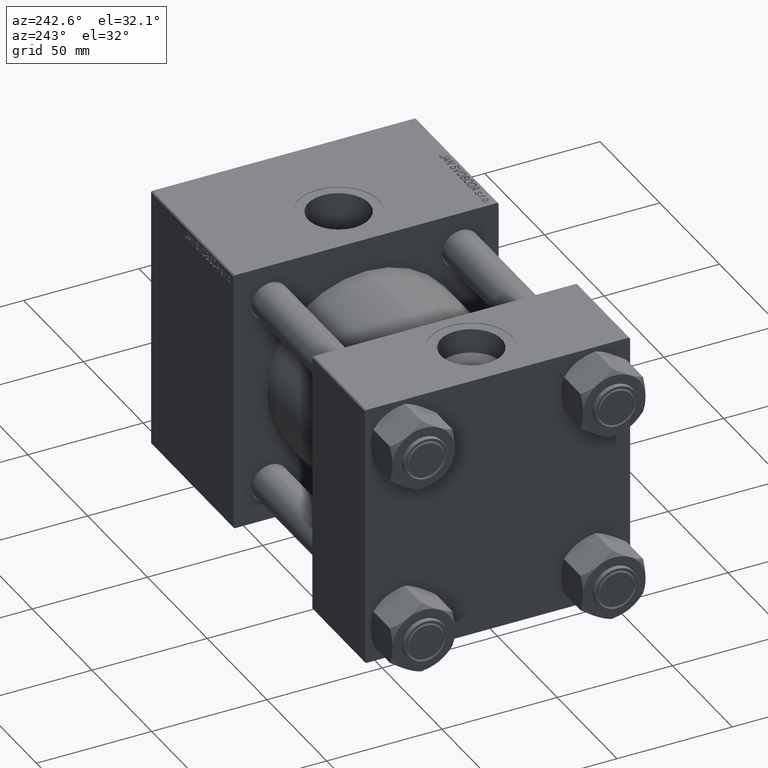
[diagram: clean part render]
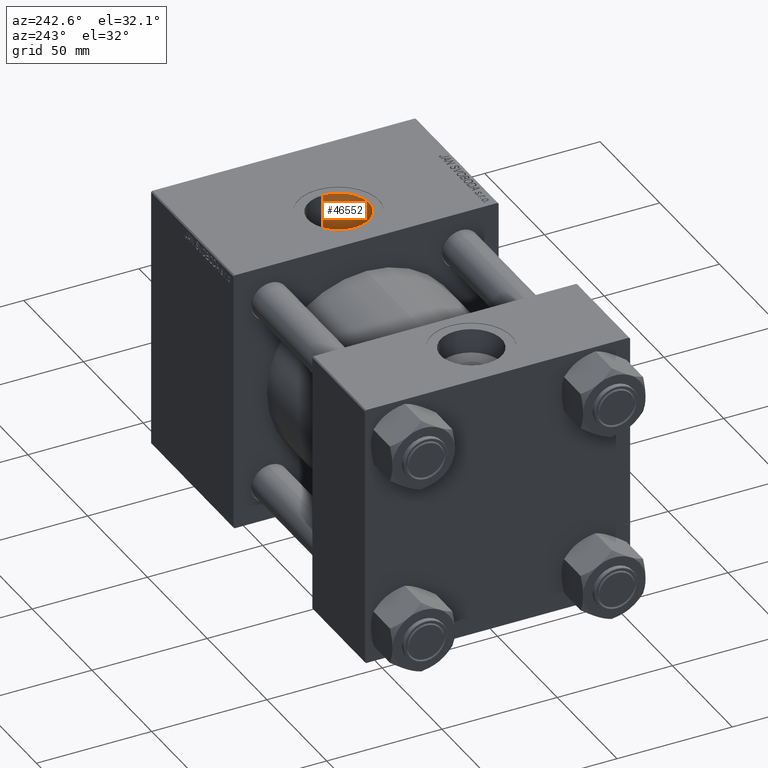
[diagram: same view with one face highlighted and labeled with its STEP entity id]
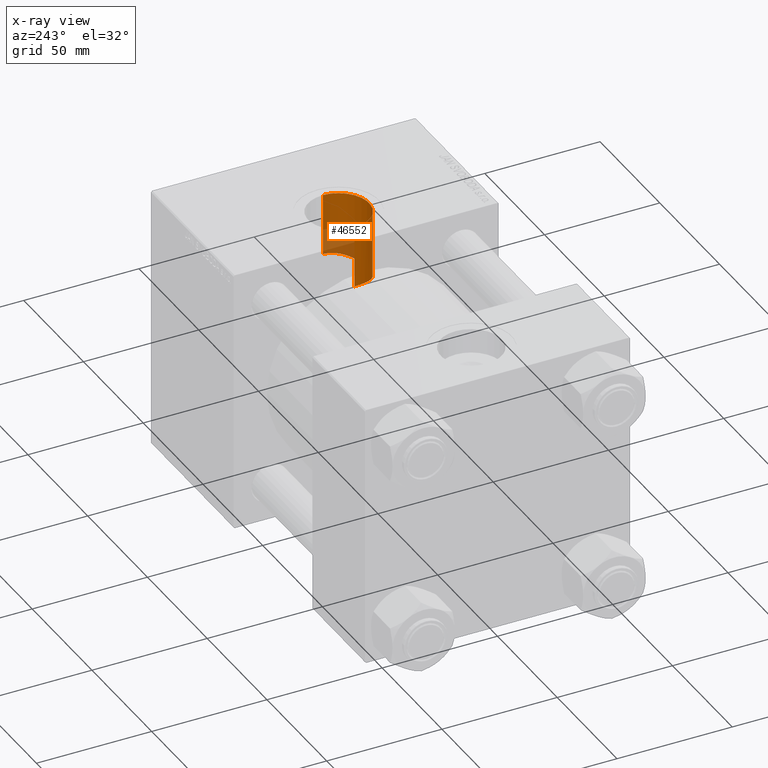
[diagram: x-ray of the same camera — body ghosted, the highlighted face saturated]
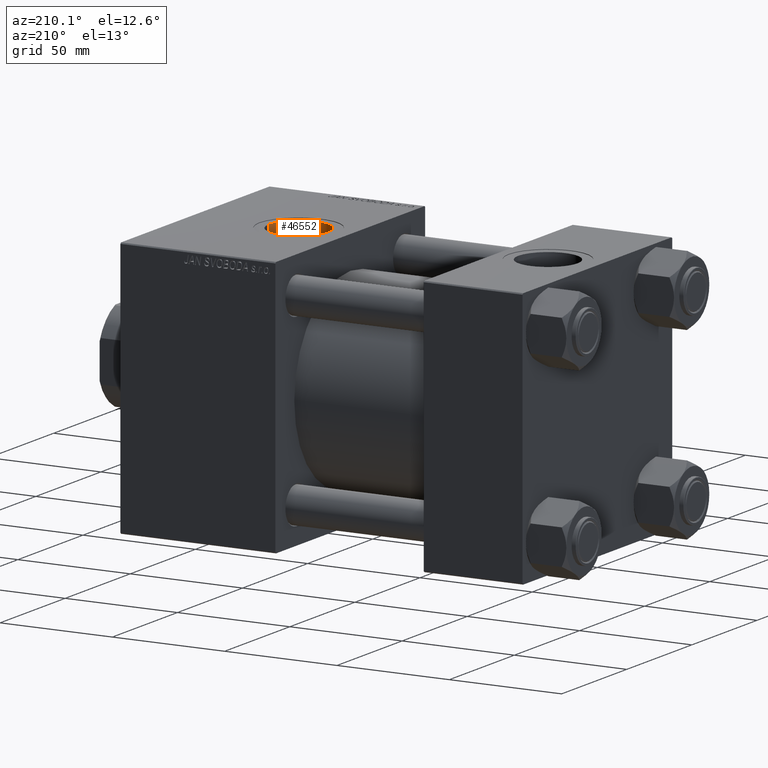
[diagram: same view with one face highlighted and labeled with its STEP entity id]
A machine part, auxiliary view. The second image highlights one B-rep face of the part: STEP entity #46552.
The next image is the same camera in x-ray: the body ghosted, the highlighted face saturated — about 23% of this face is hidden behind the body in this view.
A second angle (auxiliary view) of the same face is appended — the face is thin or edge-on in the first view.
In plain terms, the highlighted cylindrical surface (edge-blend (fillet) strip) has radius 13.22 mm, axis along (0, 0, -1).
Its self-contained STEP definition (entity closure, byte-faithful):
#3 = VECTOR ( 'NONE', #45770, 1000.000000000000000 ) ;
#21 = CARTESIAN_POINT ( 'NONE',  ( 145.7865144254239738, -3.469360593919789792, 30.31422375276991943 ) ) ;
#1277 = CARTESIAN_POINT ( 'NONE',  ( 142.6423526597983198, -9.054135661276678348, 29.12685964448619202 ) ) ;
#2294 = CARTESIAN_POINT ( 'NONE',  ( 129.5364279498983819, -12.78856437538490809, 27.69005646615466887 ) ) ;
#2576 = EDGE_CURVE ( 'NONE', #16375, #8726, #35382, .T. ) ;
#2746 = CARTESIAN_POINT ( 'NONE',  ( 146.2200000000000273, -5.319910835434427226E-15, 57.30000000000000426 ) ) ;
#2827 = LINE ( 'NONE', #19027, #13114 ) ;
#2993 = EDGE_LOOP ( 'NONE', ( #18916, #29786, #13614, #23265 ) ) ;
#4963 = CARTESIAN_POINT ( 'NONE',  ( 119.7800000000000011, -6.943352468801200285E-15, 30.50000000000000000 ) ) ;
#5128 = CARTESIAN_POINT ( 'NONE',  ( 146.2200000000000273, 3.735193139165886172E-15, 30.50000000000000000 ) ) ;
#5637 = CARTESIAN_POINT ( 'NONE',  ( 127.1150325387246909, -11.86930250710085843, 28.09806083663720599 ) ) ;
#5896 = CARTESIAN_POINT ( 'NONE',  ( 131.2630610018675554, -13.13494396814755660, 27.52743818149124522 ) ) ;
#6149 = CARTESIAN_POINT ( 'NONE',  ( 121.1597636651198258, -5.895963734545854429, 29.92720197448415576 ) ) ;
#6405 = CARTESIAN_POINT ( 'NONE',  ( 140.0106129998498830, -11.21614677345302091, 28.36393900736582196 ) ) ;
#6948 = DIRECTION ( 'NONE',  ( 0.000000000000000000, 0.000000000000000000, -1.000000000000000000 ) ) ;
#7030 = CARTESIAN_POINT ( 'NONE',  ( 146.2200000000000273, 3.735193139165886172E-15, 30.50000000000000000 ) ) ;
#8726 = VERTEX_POINT ( 'NONE', #4963 ) ;
#8981 = CARTESIAN_POINT ( 'NONE',  ( 146.2200000000000841, -0.4356842653001692378, 30.50000000000000000 ) ) ;
#9732 = CARTESIAN_POINT ( 'NONE',  ( 124.9242270899380429, -10.50154550280035259, 28.63963379536776799 ) ) ;
#10244 = CARTESIAN_POINT ( 'NONE',  ( 119.8905383167035268, -1.761810815426944510, 30.45222497216240498 ) ) ;
#12576 = CARTESIAN_POINT ( 'NONE',  ( 146.1114357896366300, -1.746952759465045801, 30.45307547687023941 ) ) ;
#12606 = FACE_OUTER_BOUND ( 'NONE', #2993, .T. ) ;
#13084 = CARTESIAN_POINT ( 'NONE',  ( 132.1334536247346136, -13.22034254794576036, 27.48586078441651992 ) ) ;
#13114 = VECTOR ( 'NONE', #6948, 1000.000000000000000 ) ;
#13337 = CARTESIAN_POINT ( 'NONE',  ( 138.4886852775931629, -12.03446490632680721, 28.02595984766822568 ) ) ;
#13367 = CARTESIAN_POINT ( 'NONE',  ( 133.0000000000000000, -6.938893903907229955E-15, 80.30000000000001137 ) ) ;
#13614 = ORIENTED_EDGE ( 'NONE', *, *, #2576, .T. ) ;
#13856 = CARTESIAN_POINT ( 'NONE',  ( 126.3453669824691445, -11.45497382992493662, 28.27179966744056472 ) ) ;
#14120 = CARTESIAN_POINT ( 'NONE',  ( 133.4410885400683071, -13.21982718594303030, 27.48610865892330679 ) ) ;
#15682 = CARTESIAN_POINT ( 'NONE',  ( 145.0298449860104597, -5.499061803692947059, 30.00292238848168935 ) ) ;
#15925 = CARTESIAN_POINT ( 'NONE',  ( 143.7325997182680339, -7.730625175580378539, 29.50629082514906543 ) ) ;
#16375 = VERTEX_POINT ( 'NONE', #7030 ) ;
#17452 = CARTESIAN_POINT ( 'NONE',  ( 136.4721340017135276, -12.78562995112138978, 27.69140687695022152 ) ) ;
#17707 = CARTESIAN_POINT ( 'NONE',  ( 120.9717173334270655, -5.502594662803204528, 30.00229299942640893 ) ) ;
#18411 = EDGE_CURVE ( 'NONE', #19382, #8726, #30079, .T. ) ;
#18916 = ORIENTED_EDGE ( 'NONE', *, *, #49738, .F. ) ;
#19027 = CARTESIAN_POINT ( 'NONE',  ( 146.2200000000000273, -5.319910835434427226E-15, 80.30000000000001137 ) ) ;
#19382 = VERTEX_POINT ( 'NONE', #24143 ) ;
#20037 = CARTESIAN_POINT ( 'NONE',  ( 144.2097623593431877, -7.020861070049586594, 29.68318166401061120 ) ) ;
#20794 = CARTESIAN_POINT ( 'NONE',  ( 146.0455026937814580, -2.184951483922684901, 30.42467161990110114 ) ) ;
#21359 = CARTESIAN_POINT ( 'NONE',  ( 119.7800000000000011, -6.938893903907229955E-15, 80.30000000000001137 ) ) ;
#21489 = EDGE_CURVE ( 'NONE', #38654, #16375, #2827, .T. ) ;
#21570 = CARTESIAN_POINT ( 'NONE',  ( 142.9330107875823046, -8.734242842983405808, 29.22466776797129739 ) ) ;
#21826 = CARTESIAN_POINT ( 'NONE',  ( 138.8805751120369791, -11.84798111112455743, 28.10559669495076207 ) ) ;
#23265 = ORIENTED_EDGE ( 'NONE', *, *, #18411, .F. ) ;
#24143 = CARTESIAN_POINT ( 'NONE',  ( 119.7800000000000011, -6.938893903907229955E-15, 57.30000000000000426 ) ) ;
#24144 = CARTESIAN_POINT ( 'NONE',  ( 145.5321119834313777, -4.297484574473445562, 30.20665086719357717 ) ) ;
#24902 = CARTESIAN_POINT ( 'NONE',  ( 143.4773305662310747, -8.073242567416885507, 29.41412855476353272 ) ) ;
#25417 = CARTESIAN_POINT ( 'NONE',  ( 121.7895618438069505, -7.019726992551902356, 29.68344081020515901 ) ) ;
#27367 = DIRECTION ( 'NONE',  ( 1.000000000000000000, 0.000000000000000000, 0.000000000000000000 ) ) ;
#28772 = CARTESIAN_POINT ( 'NONE',  ( 134.7528006111810157, -13.11066059645437321, 27.53839010874496296 ) ) ;
#29264 = CARTESIAN_POINT ( 'NONE',  ( 139.6431255221189645, -11.43786270923215831, 28.27498043559973695 ) ) ;
#29522 = CARTESIAN_POINT ( 'NONE',  ( 120.2139661335542939, -3.469802066294441545, 30.31402416901948271 ) ) ;
#29782 = CARTESIAN_POINT ( 'NONE',  ( 128.7080707722027739, -12.53365579266160701, 27.80807144077986237 ) ) ;
#29786 = ORIENTED_EDGE ( 'NONE', *, *, #21489, .T. ) ;
#30079 = LINE ( 'NONE', #21359, #3 ) ;
#32127 = CARTESIAN_POINT ( 'NONE',  ( 146.1985171015522837, -0.8722033762828286241, 30.49066924838088255 ) ) ;
#32625 = CARTESIAN_POINT ( 'NONE',  ( 119.7800000000000011, -6.943352468801200285E-15, 30.50000000000000000 ) ) ;
#32892 = AXIS2_PLACEMENT_3D ( 'NONE', #13367, #48075, #47577 ) ;
#32916 = CYLINDRICAL_SURFACE ( 'NONE', #32892, 13.22000000000000952 ) ;
#33660 = CARTESIAN_POINT ( 'NONE',  ( 135.1906556930234444, -13.04451377314774874, 27.56990655479473773 ) ) ;
#35382 = B_SPLINE_CURVE_WITH_KNOTS ( 'NONE', 3,
 ( #5128, #8981, #32127, #12576, #20794, #21, #24144, #15682, #39845, #47038, #20037, #15925, #24902, #21570, #1277, #49067, #49331, #6405, #29264, #21826, #13337, #36739, #17452, #33660, #28772, #48559, #14120, #13084, #5896, #2294, #29782, #5637, #13856, #9732, #40597, #37515, #37255, #45469, #36482, #25417, #44950, #6149, #17707, #48298, #29522, #37003, #10244, #45221, #41114, #32625 ),
 .UNSPECIFIED., .F., .F.,
 ( 4, 2, 2, 2, 2, 2, 2, 2, 2, 2, 2, 2, 2, 2, 2, 2, 2, 2, 2, 2, 2, 2, 2, 2, 4 ),
 ( 0.04185757538675118766, 0.04316435834261078686, 0.04447114129847037911, 0.04708470721018957750, 0.04839149016604916975, 0.04969827312190876895, 0.05100505607776836814, 0.05231183903362796039, 0.05492540494534710327, 0.05623218790120666777, 0.05753897085706623227, 0.06015253676878529882, 0.06145931972464482862, 0.06276610268050435149, 0.06537966859222332783, 0.06799323450394230417, 0.07060680041566128051, 0.07322036632738022910, 0.07452714928323971033, 0.07583393223909920544, 0.07714071519495868667, 0.07844749815081816791, 0.08106106406253715813, 0.08236784701839663936, 0.08367462997425612059 ),
 .UNSPECIFIED. ) ;
#36482 = CARTESIAN_POINT ( 'NONE',  ( 122.2655976745809596, -7.728072037696609442, 29.50695050260339514 ) ) ;
#36739 = CARTESIAN_POINT ( 'NONE',  ( 137.2958905103607776, -12.53220536678646369, 27.80872008028386588 ) ) ;
#37003 = CARTESIAN_POINT ( 'NONE',  ( 119.9559858989767065, -2.193295063504565157, 30.42403414554349439 ) ) ;
#37255 = CARTESIAN_POINT ( 'NONE',  ( 123.0637625229151837, -8.730545756613103947, 29.22576836869815153 ) ) ;
#37515 = CARTESIAN_POINT ( 'NONE',  ( 123.3540000404719876, -9.050278981555383240, 29.12806431996295231 ) ) ;
#38654 = VERTEX_POINT ( 'NONE', #2746 ) ;
#38739 = AXIS2_PLACEMENT_3D ( 'NONE', #42297, #50254, #27367 ) ;
#39845 = CARTESIAN_POINT ( 'NONE',  ( 144.8413458849154836, -5.893831122072890949, 29.92763754224622019 ) ) ;
#40597 = CARTESIAN_POINT ( 'NONE',  ( 124.2656625850054581, -9.960803651002088088, 28.83468594095852922 ) ) ;
#41114 = CARTESIAN_POINT ( 'NONE',  ( 119.7800000000000296, -0.4422367675364392015, 30.50000000000000355 ) ) ;
#42297 = CARTESIAN_POINT ( 'NONE',  ( 133.0000000000000000, -6.938893903907229955E-15, 57.30000000000000426 ) ) ;
#44950 = CARTESIAN_POINT ( 'NONE',  ( 121.5682678093595399, -6.653501630447837378, 29.76794790431944904 ) ) ;
#45221 = CARTESIAN_POINT ( 'NONE',  ( 119.8024092785597219, -0.8863194257868599601, 30.49026764362720243 ) ) ;
#45469 = CARTESIAN_POINT ( 'NONE',  ( 122.5203399265928113, -8.070190156072859722, 29.41496212463885129 ) ) ;
#45770 = DIRECTION ( 'NONE',  ( 0.000000000000000000, 0.000000000000000000, -1.000000000000000000 ) ) ;
#46552 = ADVANCED_FACE ( 'NONE', ( #12606 ), #32916, .F. ) ;
#47038 = CARTESIAN_POINT ( 'NONE',  ( 144.4316567906613500, -6.653716306113970802, 29.76791550433675937 ) ) ;
#47577 = DIRECTION ( 'NONE',  ( -1.000000000000000000, 0.000000000000000000, 0.000000000000000000 ) ) ;
#48075 = DIRECTION ( 'NONE',  ( 0.000000000000000000, 0.000000000000000000, -1.000000000000000000 ) ) ;
#48298 = CARTESIAN_POINT ( 'NONE',  ( 120.4675284793847396, -4.297032150836667341, 30.20678810600096043 ) ) ;
#48559 = CARTESIAN_POINT ( 'NONE',  ( 133.8777748336688092, -13.19815299954336574, 27.49656539383578746 ) ) ;
#49067 = CARTESIAN_POINT ( 'NONE',  ( 141.7316718853187183, -9.963034459542065235, 28.83389057424579249 ) ) ;
#49331 = CARTESIAN_POINT ( 'NONE',  ( 141.0741458660008902, -10.50264446907341132, 28.63921083034723836 ) ) ;
#49405 = CIRCLE ( 'NONE', #38739, 13.22000000000000952 ) ;
#49738 = EDGE_CURVE ( 'NONE', #38654, #19382, #49405, .T. ) ;
#50254 = DIRECTION ( 'NONE',  ( -0.000000000000000000, -0.000000000000000000, -1.000000000000000000 ) ) ;